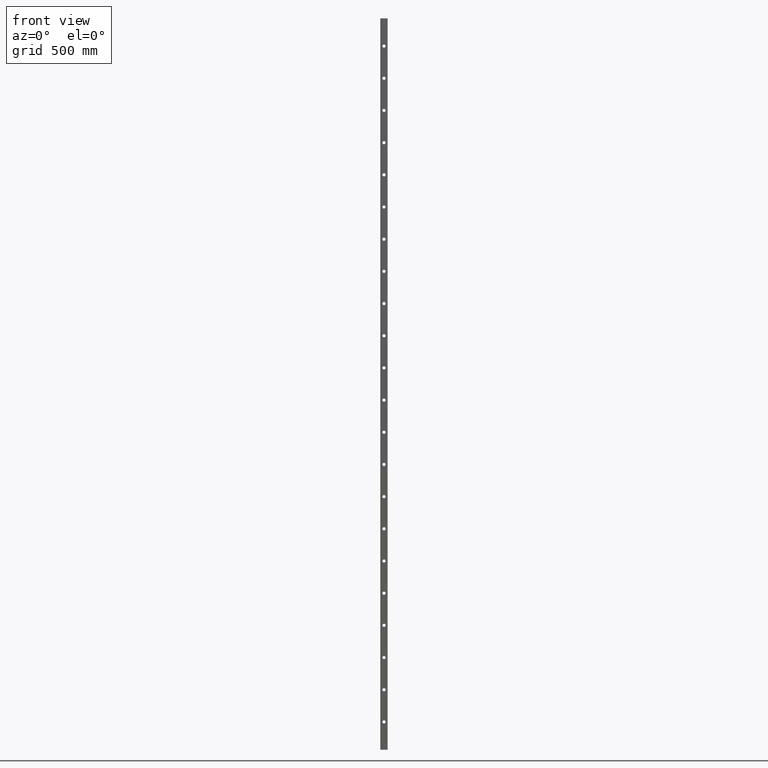
[diagram: clean part render]
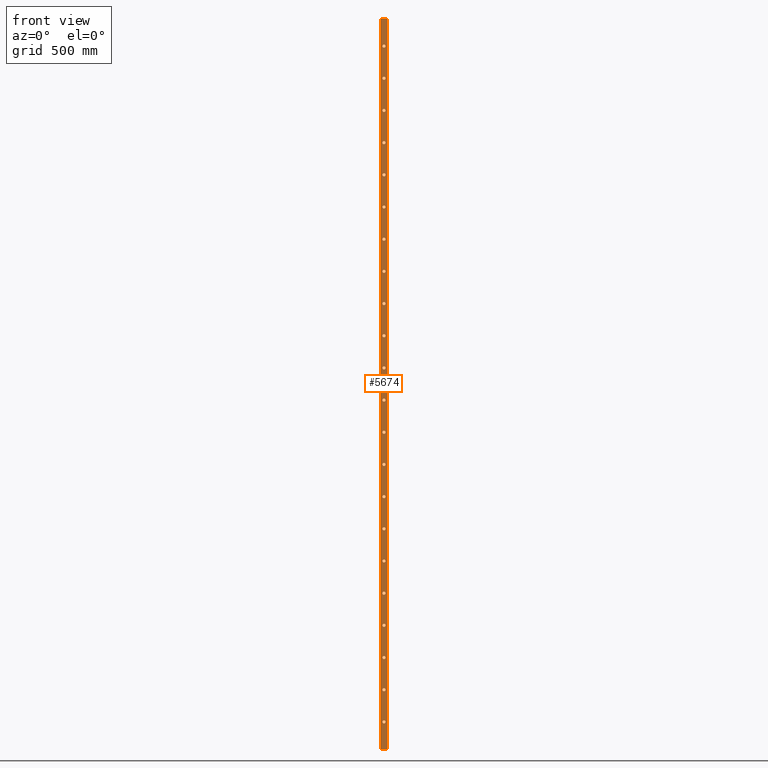
[diagram: same view with one face highlighted and labeled with its STEP entity id]
A machine part, front view. The second image highlights one B-rep face of the part: STEP entity #5674.
In plain terms, the highlighted planar face has unit normal (0, 1, 0).
Its self-contained STEP definition (entity closure, byte-faithful):
#192 = EDGE_LOOP ( 'NONE', ( #381 ) ) ;
#236 = AXIS2_PLACEMENT_3D ( 'NONE', #14262, #5277, #12950 ) ;
#245 = DIRECTION ( 'NONE',  ( 0.000000000000000000, 0.000000000000000000, 1.000000000000000000 ) ) ;
#346 = EDGE_LOOP ( 'NONE', ( #4131 ) ) ;
#381 = ORIENTED_EDGE ( 'NONE', *, *, #8440, .T. ) ;
#419 = AXIS2_PLACEMENT_3D ( 'NONE', #11657, #9296, #1499 ) ;
#525 = VERTEX_POINT ( 'NONE', #7484 ) ;
#557 = CIRCLE ( 'NONE', #5667, 6.499999999999950262 ) ;
#671 = EDGE_CURVE ( 'NONE', #16744, #16744, #12465, .T. ) ;
#684 = CIRCLE ( 'NONE', #419, 6.499999999999964473 ) ;
#740 = EDGE_CURVE ( 'NONE', #14104, #14104, #5104, .T. ) ;
#768 = FACE_BOUND ( 'NONE', #6869, .T. ) ;
#877 = EDGE_CURVE ( 'NONE', #10541, #525, #13532, .T. ) ;
#882 = LINE ( 'NONE', #9230, #16177 ) ;
#966 = CARTESIAN_POINT ( 'NONE',  ( -4.441164263008458459E-12, -10.00000000000000178, -1379.499999999997726 ) ) ;
#1141 = EDGE_CURVE ( 'NONE', #9791, #9791, #15349, .T. ) ;
#1192 = CARTESIAN_POINT ( 'NONE',  ( 2.011093251173647640E-12, -10.00000000000000178, 468.5000000000005684 ) ) ;
#1237 = DIRECTION ( 'NONE',  ( 0.000000000000000000, 1.000000000000000000, 0.000000000000000000 ) ) ;
#1300 = AXIS2_PLACEMENT_3D ( 'NONE', #3065, #12162, #16119 ) ;
#1319 = EDGE_CURVE ( 'NONE', #10541, #7550, #16752, .T. ) ;
#1398 = FACE_BOUND ( 'NONE', #11077, .T. ) ;
#1499 = DIRECTION ( 'NONE',  ( 0.000000000000000000, 0.000000000000000000, 1.000000000000000000 ) ) ;
#1510 = CARTESIAN_POINT ( 'NONE',  ( -1.215035505917405207E-12, -10.00000000000000178, -455.4999999999986926 ) ) ;
#1524 = AXIS2_PLACEMENT_3D ( 'NONE', #8837, #6260, #2410 ) ;
#1541 = EDGE_LOOP ( 'NONE', ( #15264 ) ) ;
#1545 = ORIENTED_EDGE ( 'NONE', *, *, #1319, .F. ) ;
#1600 = FACE_BOUND ( 'NONE', #4550, .T. ) ;
#1661 = VERTEX_POINT ( 'NONE', #6734 ) ;
#1768 = EDGE_CURVE ( 'NONE', #10602, #10602, #14525, .T. ) ;
#1794 = FACE_BOUND ( 'NONE', #15180, .T. ) ;
#1795 = CARTESIAN_POINT ( 'NONE',  ( -1.215035505917405207E-12, -10.00000000000000178, -461.9999999999986358 ) ) ;
#1866 = VERTEX_POINT ( 'NONE', #14125 ) ;
#2025 = DIRECTION ( 'NONE',  ( 0.000000000000000000, 1.000000000000000000, 0.000000000000000000 ) ) ;
#2162 = AXIS2_PLACEMENT_3D ( 'NONE', #13281, #5446, #6921 ) ;
#2261 = VERTEX_POINT ( 'NONE', #14239 ) ;
#2275 = CIRCLE ( 'NONE', #6971, 6.499999999999977796 ) ;
#2313 = CARTESIAN_POINT ( 'NONE',  ( 4.776346471537406127E-12, -10.00000000000000178, 1260.500000000000000 ) ) ;
#2410 = DIRECTION ( 'NONE',  ( 0.000000000000000000, 0.000000000000000000, 1.000000000000000000 ) ) ;
#2427 = CARTESIAN_POINT ( 'NONE',  ( 3.854595398082820638E-12, -10.00000000000000178, 996.5000000000002274 ) ) ;
#2570 = CIRCLE ( 'NONE', #9073, 6.499999999999950262 ) ;
#2588 = CARTESIAN_POINT ( 'NONE',  ( 3.393719861355527085E-12, -10.00000000000000178, 858.0000000000003411 ) ) ;
#2601 = FACE_OUTER_BOUND ( 'NONE', #3410, .T. ) ;
#2676 = EDGE_LOOP ( 'NONE', ( #6641 ) ) ;
#2766 = CARTESIAN_POINT ( 'NONE',  ( 3.393719861355527085E-12, -10.00000000000000178, 864.5000000000002274 ) ) ;
#2804 = EDGE_LOOP ( 'NONE', ( #10089 ) ) ;
#2891 = VERTEX_POINT ( 'NONE', #4909 ) ;
#2914 = VECTOR ( 'NONE', #12924, 1000.000000000000000 ) ;
#3049 = AXIS2_PLACEMENT_3D ( 'NONE', #7523, #7475, #11385 ) ;
#3065 = CARTESIAN_POINT ( 'NONE',  ( -3.519413189553870950E-12, -10.00000000000000178, -1121.999999999998408 ) ) ;
#3148 = DIRECTION ( 'NONE',  ( 0.000000000000000000, 1.000000000000000000, 0.000000000000000000 ) ) ;
#3155 = DIRECTION ( 'NONE',  ( 0.000000000000000000, 1.000000000000000000, 0.000000000000000000 ) ) ;
#3188 = EDGE_LOOP ( 'NONE', ( #11127 ) ) ;
#3246 = DIRECTION ( 'NONE',  ( 0.000000000000000000, 1.000000000000000000, 0.000000000000000000 ) ) ;
#3410 = EDGE_LOOP ( 'NONE', ( #15664, #3584, #1545, #11080 ) ) ;
#3411 = FACE_BOUND ( 'NONE', #9045, .T. ) ;
#3565 = CARTESIAN_POINT ( 'NONE',  ( 4.315470934810113786E-12, -10.00000000000000178, 1128.500000000000000 ) ) ;
#3584 = ORIENTED_EDGE ( 'NONE', *, *, #10344, .F. ) ;
#3605 = FACE_BOUND ( 'NONE', #14813, .T. ) ;
#3634 = DIRECTION ( 'NONE',  ( 0.000000000000000000, 1.000000000000000000, 0.000000000000000000 ) ) ;
#3659 = DIRECTION ( 'NONE',  ( 0.000000000000000000, 1.000000000000000000, 0.000000000000000000 ) ) ;
#3728 = EDGE_CURVE ( 'NONE', #1866, #1866, #16722, .T. ) ;
#3781 = CARTESIAN_POINT ( 'NONE',  ( 2.471968787900940385E-12, -10.00000000000000178, 594.0000000000005684 ) ) ;
#4124 = ORIENTED_EDGE ( 'NONE', *, *, #5419, .T. ) ;
#4131 = ORIENTED_EDGE ( 'NONE', *, *, #3728, .T. ) ;
#4228 = FACE_BOUND ( 'NONE', #12377, .T. ) ;
#4355 = VERTEX_POINT ( 'NONE', #3565 ) ;
#4367 = ORIENTED_EDGE ( 'NONE', *, *, #6390, .T. ) ;
#4423 = FACE_BOUND ( 'NONE', #8470, .T. ) ;
#4550 = EDGE_LOOP ( 'NONE', ( #11027 ) ) ;
#4572 = DIRECTION ( 'NONE',  ( 0.000000000000000000, 0.000000000000000000, 1.000000000000000000 ) ) ;
#4709 = LINE ( 'NONE', #14287, #2914 ) ;
#4814 = FACE_BOUND ( 'NONE', #346, .T. ) ;
#4857 = CARTESIAN_POINT ( 'NONE',  ( 6.284666409917680934E-13, -10.00000000000000178, 72.50000000000090949 ) ) ;
#4891 = EDGE_LOOP ( 'NONE', ( #13702 ) ) ;
#4909 = CARTESIAN_POINT ( 'NONE',  ( -7.541599691901116551E-13, -10.00000000000000178, -323.4999999999988063 ) ) ;
#5030 = EDGE_LOOP ( 'NONE', ( #4367 ) ) ;
#5104 = CIRCLE ( 'NONE', #1524, 6.499999999999950262 ) ;
#5115 = CIRCLE ( 'NONE', #10255, 6.499999999999950262 ) ;
#5223 = FACE_BOUND ( 'NONE', #15353, .T. ) ;
#5277 = DIRECTION ( 'NONE',  ( 0.000000000000000000, 1.000000000000000000, 0.000000000000000000 ) ) ;
#5419 = EDGE_CURVE ( 'NONE', #7354, #7354, #557, .T. ) ;
#5446 = DIRECTION ( 'NONE',  ( 0.000000000000000000, 1.000000000000000000, 0.000000000000000000 ) ) ;
#5529 = CIRCLE ( 'NONE', #16400, 6.499999999999950262 ) ;
#5571 = VERTEX_POINT ( 'NONE', #11709 ) ;
#5667 = AXIS2_PLACEMENT_3D ( 'NONE', #6736, #8049, #245 ) ;
#5674 = ADVANCED_FACE ( 'NONE', ( #9533, #1600, #6037, #10530, #7685, #14024, #3411, #15050, #5223, #13621, #4228, #13434, #1794, #7070, #3605, #12585, #10930, #4423, #1398, #10738, #4814, #768, #2601 ), #16893, .F. ) ;
#5759 = AXIS2_PLACEMENT_3D ( 'NONE', #8908, #1237, #7756 ) ;
#5762 = VERTEX_POINT ( 'NONE', #7598 ) ;
#5812 = EDGE_LOOP ( 'NONE', ( #13499 ) ) ;
#6021 = CIRCLE ( 'NONE', #11439, 6.499999999999950262 ) ;
#6037 = FACE_BOUND ( 'NONE', #192, .T. ) ;
#6088 = EDGE_CURVE ( 'NONE', #12665, #12665, #6021, .T. ) ;
#6220 = ORIENTED_EDGE ( 'NONE', *, *, #14994, .T. ) ;
#6260 = DIRECTION ( 'NONE',  ( 0.000000000000000000, 1.000000000000000000, 0.000000000000000000 ) ) ;
#6280 = DIRECTION ( 'NONE',  ( 0.000000000000000000, 1.000000000000000000, 0.000000000000000000 ) ) ;
#6317 = DIRECTION ( 'NONE',  ( 0.000000000000000000, 1.000000000000000000, 0.000000000000000000 ) ) ;
#6390 = EDGE_CURVE ( 'NONE', #2261, #2261, #15437, .T. ) ;
#6628 = VERTEX_POINT ( 'NONE', #2427 ) ;
#6641 = ORIENTED_EDGE ( 'NONE', *, *, #15769, .T. ) ;
#6722 = CARTESIAN_POINT ( 'NONE',  ( 5.237222008264700083E-12, -10.00000000000000178, 1386.000000000000000 ) ) ;
#6734 = CARTESIAN_POINT ( 'NONE',  ( 2.932844324628233937E-12, -10.00000000000000178, 732.5000000000003411 ) ) ;
#6736 = CARTESIAN_POINT ( 'NONE',  ( -4.441164263008458459E-12, -10.00000000000000178, -1385.999999999997726 ) ) ;
#6810 = CARTESIAN_POINT ( 'NONE',  ( 1.550217714446354289E-12, -10.00000000000000178, 330.0000000000007390 ) ) ;
#6852 = VERTEX_POINT ( 'NONE', #8963 ) ;
#6869 = EDGE_LOOP ( 'NONE', ( #4124 ) ) ;
#6894 = CARTESIAN_POINT ( 'NONE',  ( -3.058537652826578205E-12, -10.00000000000000178, -989.9999999999981810 ) ) ;
#6921 = DIRECTION ( 'NONE',  ( 0.000000000000000000, 0.000000000000000000, 1.000000000000000000 ) ) ;
#6971 = AXIS2_PLACEMENT_3D ( 'NONE', #7811, #6317, #10414 ) ;
#6983 = CIRCLE ( 'NONE', #1300, 6.499999999999950262 ) ;
#6992 = AXIS2_PLACEMENT_3D ( 'NONE', #6894, #10536, #12011 ) ;
#7005 = CARTESIAN_POINT ( 'NONE',  ( -12.00000000000001421, -10.00000000000000178, 1500.000000000000000 ) ) ;
#7018 = EDGE_CURVE ( 'NONE', #16332, #16332, #13992, .T. ) ;
#7024 = CIRCLE ( 'NONE', #236, 6.500000000000061284 ) ;
#7070 = FACE_BOUND ( 'NONE', #3188, .T. ) ;
#7101 = EDGE_CURVE ( 'NONE', #2891, #2891, #2570, .T. ) ;
#7354 = VERTEX_POINT ( 'NONE', #966 ) ;
#7475 = DIRECTION ( 'NONE',  ( 0.000000000000000000, 1.000000000000000000, 0.000000000000000000 ) ) ;
#7484 = CARTESIAN_POINT ( 'NONE',  ( -12.00000000000001421, -10.00000000000000178, -1500.000000000000000 ) ) ;
#7494 = EDGE_CURVE ( 'NONE', #12870, #12870, #8867, .T. ) ;
#7523 = CARTESIAN_POINT ( 'NONE',  ( -2.136786579371991504E-12, -10.00000000000000178, -725.9999999999984084 ) ) ;
#7532 = AXIS2_PLACEMENT_3D ( 'NONE', #14385, #14315, #16891 ) ;
#7537 = CARTESIAN_POINT ( 'NONE',  ( 2.932844324628233937E-12, -10.00000000000000178, 726.0000000000004547 ) ) ;
#7550 = VERTEX_POINT ( 'NONE', #11223 ) ;
#7598 = CARTESIAN_POINT ( 'NONE',  ( -3.519413189553870950E-12, -10.00000000000000178, -1115.499999999998408 ) ) ;
#7685 = FACE_BOUND ( 'NONE', #10427, .T. ) ;
#7756 = DIRECTION ( 'NONE',  ( 0.000000000000000000, 0.000000000000000000, 1.000000000000000000 ) ) ;
#7811 = CARTESIAN_POINT ( 'NONE',  ( 1.089342177719060737E-12, -10.00000000000000178, 198.0000000000008527 ) ) ;
#7920 = EDGE_LOOP ( 'NONE', ( #14765 ) ) ;
#7987 = EDGE_CURVE ( 'NONE', #6852, #6852, #14609, .T. ) ;
#7994 = EDGE_CURVE ( 'NONE', #6628, #6628, #7024, .T. ) ;
#8049 = DIRECTION ( 'NONE',  ( 0.000000000000000000, 1.000000000000000000, 0.000000000000000000 ) ) ;
#8059 = AXIS2_PLACEMENT_3D ( 'NONE', #6722, #15807, #15635 ) ;
#8098 = DIRECTION ( 'NONE',  ( 0.000000000000000000, 1.000000000000000000, 0.000000000000000000 ) ) ;
#8119 = DIRECTION ( 'NONE',  ( 0.000000000000000000, 0.000000000000000000, 1.000000000000000000 ) ) ;
#8440 = EDGE_CURVE ( 'NONE', #4355, #4355, #16211, .T. ) ;
#8470 = EDGE_LOOP ( 'NONE', ( #15017 ) ) ;
#8766 = CARTESIAN_POINT ( 'NONE',  ( 4.315470934810113786E-12, -10.00000000000000178, 1122.000000000000000 ) ) ;
#8800 = CARTESIAN_POINT ( 'NONE',  ( 1.550217714446354289E-12, -10.00000000000000178, 336.5000000000006821 ) ) ;
#8837 = CARTESIAN_POINT ( 'NONE',  ( -2.932844324628189104E-13, -10.00000000000000178, -197.9999999999988347 ) ) ;
#8858 = EDGE_LOOP ( 'NONE', ( #12311 ) ) ;
#8867 = CIRCLE ( 'NONE', #10484, 6.499999999999950262 ) ;
#8908 = CARTESIAN_POINT ( 'NONE',  ( -3.980288726281163695E-12, -10.00000000000000178, -1253.999999999997954 ) ) ;
#8963 = CARTESIAN_POINT ( 'NONE',  ( 1.675911042644745915E-13, -10.00000000000000178, -59.49999999999897682 ) ) ;
#9045 = EDGE_LOOP ( 'NONE', ( #11328 ) ) ;
#9073 = AXIS2_PLACEMENT_3D ( 'NONE', #9623, #3246, #16252 ) ;
#9230 = CARTESIAN_POINT ( 'NONE',  ( 11.99999999999998934, -9.999999999999998224, 1500.000000000000000 ) ) ;
#9296 = DIRECTION ( 'NONE',  ( 0.000000000000000000, 1.000000000000000000, 0.000000000000000000 ) ) ;
#9415 = CARTESIAN_POINT ( 'NONE',  ( 5.237222008264700083E-12, -10.00000000000000178, 1392.499999999999773 ) ) ;
#9533 = FACE_BOUND ( 'NONE', #15158, .T. ) ;
#9547 = EDGE_CURVE ( 'NONE', #11022, #11022, #684, .T. ) ;
#9562 = CARTESIAN_POINT ( 'NONE',  ( -12.00000000000001421, -10.00000000000000178, 1500.000000000000000 ) ) ;
#9613 = VECTOR ( 'NONE', #14214, 1000.000000000000000 ) ;
#9623 = CARTESIAN_POINT ( 'NONE',  ( -7.541599691901116551E-13, -10.00000000000000178, -329.9999999999987494 ) ) ;
#9760 = CARTESIAN_POINT ( 'NONE',  ( 4.776346471537406127E-12, -10.00000000000000178, 1254.000000000000000 ) ) ;
#9791 = VERTEX_POINT ( 'NONE', #1192 ) ;
#9939 = AXIS2_PLACEMENT_3D ( 'NONE', #1795, #3155, #10763 ) ;
#9956 = EDGE_CURVE ( 'NONE', #5762, #5762, #6983, .T. ) ;
#10089 = ORIENTED_EDGE ( 'NONE', *, *, #7987, .T. ) ;
#10150 = DIRECTION ( 'NONE',  ( 0.000000000000000000, 0.000000000000000000, 1.000000000000000000 ) ) ;
#10204 = CIRCLE ( 'NONE', #9939, 6.499999999999950262 ) ;
#10255 = AXIS2_PLACEMENT_3D ( 'NONE', #7537, #6280, #11458 ) ;
#10344 = EDGE_CURVE ( 'NONE', #7550, #5571, #882, .T. ) ;
#10360 = EDGE_CURVE ( 'NONE', #12872, #12872, #12700, .T. ) ;
#10391 = VERTEX_POINT ( 'NONE', #10545 ) ;
#10414 = DIRECTION ( 'NONE',  ( 0.000000000000000000, 0.000000000000000000, 1.000000000000000000 ) ) ;
#10427 = EDGE_LOOP ( 'NONE', ( #6220 ) ) ;
#10484 = AXIS2_PLACEMENT_3D ( 'NONE', #9760, #2025, #4572 ) ;
#10530 = FACE_BOUND ( 'NONE', #5812, .T. ) ;
#10536 = DIRECTION ( 'NONE',  ( 0.000000000000000000, 1.000000000000000000, 0.000000000000000000 ) ) ;
#10541 = VERTEX_POINT ( 'NONE', #9562 ) ;
#10545 = CARTESIAN_POINT ( 'NONE',  ( 1.089342177719060737E-12, -10.00000000000000178, 204.5000000000008242 ) ) ;
#10575 = DIRECTION ( 'NONE',  ( -0.000000000000000000, -0.000000000000000000, -1.000000000000000000 ) ) ;
#10602 = VERTEX_POINT ( 'NONE', #8800 ) ;
#10675 = AXIS2_PLACEMENT_3D ( 'NONE', #14323, #8098, #10756 ) ;
#10719 = EDGE_CURVE ( 'NONE', #525, #5571, #4709, .T. ) ;
#10738 = FACE_BOUND ( 'NONE', #7920, .T. ) ;
#10756 = DIRECTION ( 'NONE',  ( 0.000000000000000000, -0.000000000000000000, 1.000000000000000000 ) ) ;
#10763 = DIRECTION ( 'NONE',  ( 0.000000000000000000, 0.000000000000000000, 1.000000000000000000 ) ) ;
#10883 = ORIENTED_EDGE ( 'NONE', *, *, #1768, .T. ) ;
#10930 = FACE_BOUND ( 'NONE', #8858, .T. ) ;
#11022 = VERTEX_POINT ( 'NONE', #4857 ) ;
#11027 = ORIENTED_EDGE ( 'NONE', *, *, #7494, .T. ) ;
#11077 = EDGE_LOOP ( 'NONE', ( #15247 ) ) ;
#11080 = ORIENTED_EDGE ( 'NONE', *, *, #877, .T. ) ;
#11127 = ORIENTED_EDGE ( 'NONE', *, *, #7101, .T. ) ;
#11223 = CARTESIAN_POINT ( 'NONE',  ( 11.99999999999998934, -9.999999999999998224, 1500.000000000000000 ) ) ;
#11262 = EDGE_CURVE ( 'NONE', #10391, #10391, #2275, .T. ) ;
#11311 = DIRECTION ( 'NONE',  ( -0.000000000000000000, -0.000000000000000000, -1.000000000000000000 ) ) ;
#11328 = ORIENTED_EDGE ( 'NONE', *, *, #15861, .T. ) ;
#11385 = DIRECTION ( 'NONE',  ( 0.000000000000000000, 0.000000000000000000, 1.000000000000000000 ) ) ;
#11439 = AXIS2_PLACEMENT_3D ( 'NONE', #15001, #3148, #16255 ) ;
#11458 = DIRECTION ( 'NONE',  ( 0.000000000000000000, 0.000000000000000000, 1.000000000000000000 ) ) ;
#11626 = DIRECTION ( 'NONE',  ( 0.000000000000000000, 0.000000000000000000, 1.000000000000000000 ) ) ;
#11657 = CARTESIAN_POINT ( 'NONE',  ( 6.284666409917680934E-13, -10.00000000000000178, 66.00000000000095213 ) ) ;
#11676 = DIRECTION ( 'NONE',  ( 0.000000000000000000, 0.000000000000000000, 1.000000000000000000 ) ) ;
#11709 = CARTESIAN_POINT ( 'NONE',  ( 11.99999999999998934, -9.999999999999998224, -1500.000000000000000 ) ) ;
#12011 = DIRECTION ( 'NONE',  ( 0.000000000000000000, 0.000000000000000000, 1.000000000000000000 ) ) ;
#12087 = CARTESIAN_POINT ( 'NONE',  ( -1.675911042644697952E-12, -10.00000000000000178, -593.9999999999985221 ) ) ;
#12162 = DIRECTION ( 'NONE',  ( 0.000000000000000000, 1.000000000000000000, 0.000000000000000000 ) ) ;
#12311 = ORIENTED_EDGE ( 'NONE', *, *, #671, .T. ) ;
#12332 = AXIS2_PLACEMENT_3D ( 'NONE', #12087, #16682, #10150 ) ;
#12377 = EDGE_LOOP ( 'NONE', ( #16374 ) ) ;
#12465 = CIRCLE ( 'NONE', #3049, 6.499999999999950262 ) ;
#12585 = FACE_BOUND ( 'NONE', #5030, .T. ) ;
#12665 = VERTEX_POINT ( 'NONE', #12922 ) ;
#12686 = CARTESIAN_POINT ( 'NONE',  ( -3.058537652826578205E-12, -10.00000000000000178, -983.4999999999982947 ) ) ;
#12700 = CIRCLE ( 'NONE', #8059, 6.499999999999950262 ) ;
#12706 = CIRCLE ( 'NONE', #13253, 6.499999999999950262 ) ;
#12866 = AXIS2_PLACEMENT_3D ( 'NONE', #6810, #15940, #8119 ) ;
#12870 = VERTEX_POINT ( 'NONE', #2313 ) ;
#12872 = VERTEX_POINT ( 'NONE', #9415 ) ;
#12922 = CARTESIAN_POINT ( 'NONE',  ( -2.597662116099284249E-12, -10.00000000000000178, -851.4999999999981810 ) ) ;
#12924 = DIRECTION ( 'NONE',  ( 1.000000000000000000, 0.000000000000000000, 0.000000000000000000 ) ) ;
#12950 = DIRECTION ( 'NONE',  ( 0.000000000000000000, 0.000000000000000000, 1.000000000000000000 ) ) ;
#12964 = ORIENTED_EDGE ( 'NONE', *, *, #16278, .T. ) ;
#13099 = ORIENTED_EDGE ( 'NONE', *, *, #740, .T. ) ;
#13209 = CARTESIAN_POINT ( 'NONE',  ( 2.471968787900940385E-12, -10.00000000000000178, 600.5000000000004547 ) ) ;
#13253 = AXIS2_PLACEMENT_3D ( 'NONE', #2588, #16773, #11676 ) ;
#13281 = CARTESIAN_POINT ( 'NONE',  ( 2.011093251173647640E-12, -10.00000000000000178, 462.0000000000006253 ) ) ;
#13299 = VERTEX_POINT ( 'NONE', #13209 ) ;
#13434 = FACE_BOUND ( 'NONE', #2804, .T. ) ;
#13499 = ORIENTED_EDGE ( 'NONE', *, *, #7994, .T. ) ;
#13532 = LINE ( 'NONE', #7005, #14129 ) ;
#13621 = FACE_BOUND ( 'NONE', #4891, .T. ) ;
#13673 = AXIS2_PLACEMENT_3D ( 'NONE', #8766, #3634, #15287 ) ;
#13698 = VERTEX_POINT ( 'NONE', #1510 ) ;
#13702 = ORIENTED_EDGE ( 'NONE', *, *, #11262, .T. ) ;
#13992 = CIRCLE ( 'NONE', #6992, 6.499999999999950262 ) ;
#14024 = FACE_BOUND ( 'NONE', #2676, .T. ) ;
#14104 = VERTEX_POINT ( 'NONE', #16635 ) ;
#14125 = CARTESIAN_POINT ( 'NONE',  ( -3.980288726281163695E-12, -10.00000000000000178, -1247.499999999997954 ) ) ;
#14129 = VECTOR ( 'NONE', #11311, 1000.000000000000000 ) ;
#14214 = DIRECTION ( 'NONE',  ( 1.000000000000000000, 0.000000000000000000, 0.000000000000000000 ) ) ;
#14239 = CARTESIAN_POINT ( 'NONE',  ( -1.675911042644697952E-12, -10.00000000000000178, -587.4999999999986358 ) ) ;
#14262 = CARTESIAN_POINT ( 'NONE',  ( 3.854595398082820638E-12, -10.00000000000000178, 990.0000000000002274 ) ) ;
#14287 = CARTESIAN_POINT ( 'NONE',  ( -12.00000000000001421, -10.00000000000000178, -1500.000000000000000 ) ) ;
#14315 = DIRECTION ( 'NONE',  ( 0.000000000000000000, 1.000000000000000000, 0.000000000000000000 ) ) ;
#14323 = CARTESIAN_POINT ( 'NONE',  ( -12.00000000000001421, -10.00000000000000178, 1500.000000000000000 ) ) ;
#14385 = CARTESIAN_POINT ( 'NONE',  ( 1.675911042644745915E-13, -10.00000000000000178, -65.99999999999894840 ) ) ;
#14525 = CIRCLE ( 'NONE', #12866, 6.499999999999950262 ) ;
#14609 = CIRCLE ( 'NONE', #7532, 6.499999999999970690 ) ;
#14765 = ORIENTED_EDGE ( 'NONE', *, *, #9956, .T. ) ;
#14813 = EDGE_LOOP ( 'NONE', ( #12964 ) ) ;
#14994 = EDGE_CURVE ( 'NONE', #16750, #16750, #12706, .T. ) ;
#15001 = CARTESIAN_POINT ( 'NONE',  ( -2.597662116099284249E-12, -10.00000000000000178, -857.9999999999980673 ) ) ;
#15017 = ORIENTED_EDGE ( 'NONE', *, *, #6088, .T. ) ;
#15050 = FACE_BOUND ( 'NONE', #1541, .T. ) ;
#15153 = CARTESIAN_POINT ( 'NONE',  ( -2.136786579371991504E-12, -10.00000000000000178, -719.4999999999985221 ) ) ;
#15158 = EDGE_LOOP ( 'NONE', ( #15675 ) ) ;
#15180 = EDGE_LOOP ( 'NONE', ( #13099 ) ) ;
#15247 = ORIENTED_EDGE ( 'NONE', *, *, #7018, .T. ) ;
#15264 = ORIENTED_EDGE ( 'NONE', *, *, #1141, .T. ) ;
#15287 = DIRECTION ( 'NONE',  ( 0.000000000000000000, 0.000000000000000000, 1.000000000000000000 ) ) ;
#15349 = CIRCLE ( 'NONE', #2162, 6.499999999999950262 ) ;
#15353 = EDGE_LOOP ( 'NONE', ( #10883 ) ) ;
#15437 = CIRCLE ( 'NONE', #12332, 6.499999999999950262 ) ;
#15635 = DIRECTION ( 'NONE',  ( 0.000000000000000000, 0.000000000000000000, 1.000000000000000000 ) ) ;
#15664 = ORIENTED_EDGE ( 'NONE', *, *, #10719, .T. ) ;
#15675 = ORIENTED_EDGE ( 'NONE', *, *, #10360, .T. ) ;
#15769 = EDGE_CURVE ( 'NONE', #1661, #1661, #5115, .T. ) ;
#15807 = DIRECTION ( 'NONE',  ( 0.000000000000000000, 1.000000000000000000, 0.000000000000000000 ) ) ;
#15861 = EDGE_CURVE ( 'NONE', #13299, #13299, #5529, .T. ) ;
#15940 = DIRECTION ( 'NONE',  ( 0.000000000000000000, 1.000000000000000000, 0.000000000000000000 ) ) ;
#16119 = DIRECTION ( 'NONE',  ( 0.000000000000000000, 0.000000000000000000, 1.000000000000000000 ) ) ;
#16177 = VECTOR ( 'NONE', #10575, 1000.000000000000000 ) ;
#16211 = CIRCLE ( 'NONE', #13673, 6.499999999999950262 ) ;
#16252 = DIRECTION ( 'NONE',  ( 0.000000000000000000, 0.000000000000000000, 1.000000000000000000 ) ) ;
#16255 = DIRECTION ( 'NONE',  ( 0.000000000000000000, 0.000000000000000000, 1.000000000000000000 ) ) ;
#16278 = EDGE_CURVE ( 'NONE', #13698, #13698, #10204, .T. ) ;
#16332 = VERTEX_POINT ( 'NONE', #12686 ) ;
#16374 = ORIENTED_EDGE ( 'NONE', *, *, #9547, .T. ) ;
#16400 = AXIS2_PLACEMENT_3D ( 'NONE', #3781, #3659, #11626 ) ;
#16635 = CARTESIAN_POINT ( 'NONE',  ( -2.932844324628189104E-13, -10.00000000000000178, -191.4999999999988916 ) ) ;
#16682 = DIRECTION ( 'NONE',  ( 0.000000000000000000, 1.000000000000000000, 0.000000000000000000 ) ) ;
#16722 = CIRCLE ( 'NONE', #5759, 6.499999999999950262 ) ;
#16744 = VERTEX_POINT ( 'NONE', #15153 ) ;
#16750 = VERTEX_POINT ( 'NONE', #2766 ) ;
#16752 = LINE ( 'NONE', #16892, #9613 ) ;
#16773 = DIRECTION ( 'NONE',  ( 0.000000000000000000, 1.000000000000000000, 0.000000000000000000 ) ) ;
#16891 = DIRECTION ( 'NONE',  ( 0.000000000000000000, 0.000000000000000000, 1.000000000000000000 ) ) ;
#16892 = CARTESIAN_POINT ( 'NONE',  ( -12.00000000000001421, -10.00000000000000178, 1500.000000000000000 ) ) ;
#16893 = PLANE ( 'NONE',  #10675 ) ;